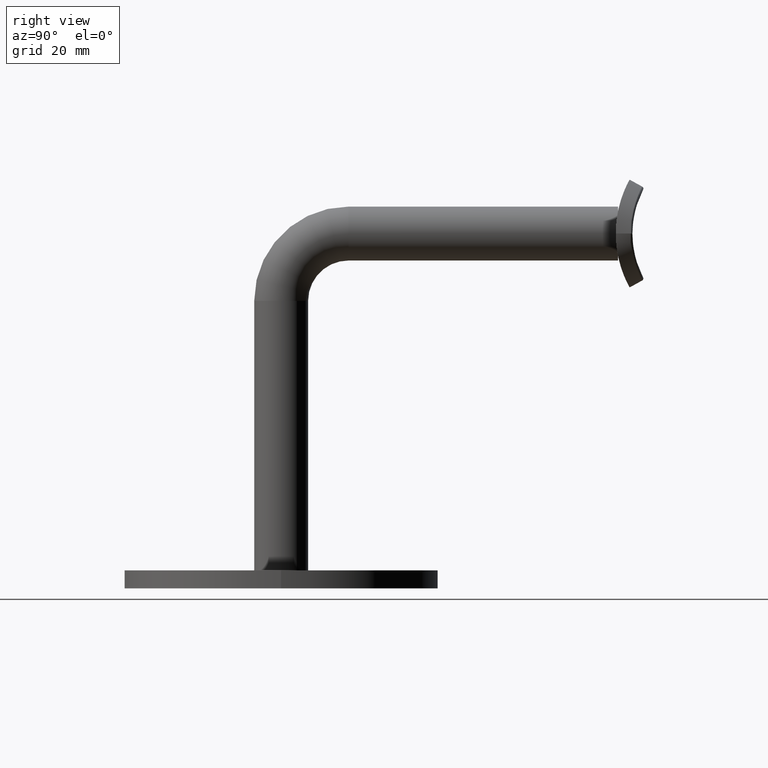
[diagram: clean part render]
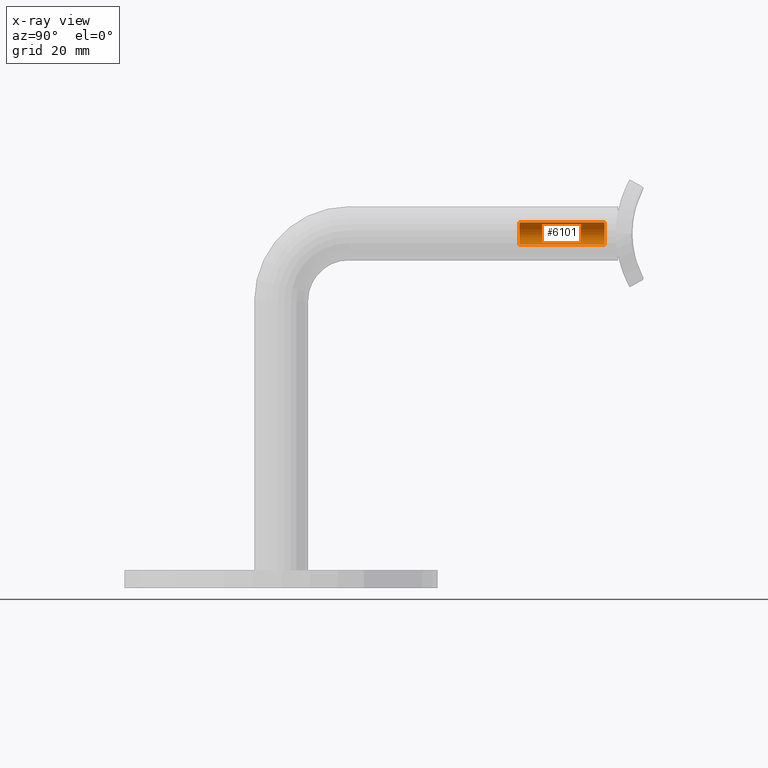
[diagram: x-ray — body ghosted, one internal face saturated and labeled with its STEP entity id]
A machine part, right view, then the same camera in x-ray: the body is ghosted and one INTERNAL B-rep face — a face not visible from any outside direction — is saturated and labeled: STEP entity #6101.
In plain terms, the highlighted cylindrical surface (edge-blend (fillet) strip) has radius 2.5 mm, axis along (0, 1, 0).
Its self-contained STEP definition (entity closure, byte-faithful):
#242 = CIRCLE ( 'NONE', #13540, 2.499999999999988454 ) ;
#303 = LINE ( 'NONE', #4439, #15909 ) ;
#750 = DIRECTION ( 'NONE',  ( 0.000000000000000000, 0.000000000000000000, 1.000000000000000000 ) ) ;
#1291 = AXIS2_PLACEMENT_3D ( 'NONE', #5112, #8012, #5050 ) ;
#1392 = CARTESIAN_POINT ( 'NONE',  ( 0.000000000000000000, 71.99999999999998579, 77.49999999999997158 ) ) ;
#1709 = DIRECTION ( 'NONE',  ( -0.000000000000000000, 1.000000000000000000, 6.123233995736766036E-17 ) ) ;
#2224 = ORIENTED_EDGE ( 'NONE', *, *, #17833, .F. ) ;
#4018 = VERTEX_POINT ( 'NONE', #14055 ) ;
#4326 = AXIS2_PLACEMENT_3D ( 'NONE', #6530, #1709, #12440 ) ;
#4439 = CARTESIAN_POINT ( 'NONE',  ( 3.061616997868373773E-16, 74.99999999999998579, 72.50000000000000000 ) ) ;
#4739 = CARTESIAN_POINT ( 'NONE',  ( 3.061616997868398918E-16, 52.99999999999998579, 72.50000000000000000 ) ) ;
#5050 = DIRECTION ( 'NONE',  ( 0.000000000000000000, 0.000000000000000000, 1.000000000000000000 ) ) ;
#5112 = CARTESIAN_POINT ( 'NONE',  ( 0.000000000000000000, 71.99999999999998579, 74.99999999999998579 ) ) ;
#6101 = ADVANCED_FACE ( 'NONE', ( #12777 ), #11814, .F. ) ;
#6530 = CARTESIAN_POINT ( 'NONE',  ( 0.000000000000000000, 74.99999999999998579, 74.99999999999998579 ) ) ;
#6895 = CARTESIAN_POINT ( 'NONE',  ( 0.000000000000000000, 52.99999999999998579, 74.99999999999998579 ) ) ;
#6981 = ORIENTED_EDGE ( 'NONE', *, *, #18858, .F. ) ;
#8012 = DIRECTION ( 'NONE',  ( 0.000000000000000000, -1.000000000000000000, -6.123233995736766036E-17 ) ) ;
#9312 = DIRECTION ( 'NONE',  ( -0.000000000000000000, 1.000000000000000000, 6.123233995736766036E-17 ) ) ;
#9435 = EDGE_LOOP ( 'NONE', ( #16541, #11126, #6981, #2224 ) ) ;
#10855 = VECTOR ( 'NONE', #9312, 1000.000000000000000 ) ;
#11126 = ORIENTED_EDGE ( 'NONE', *, *, #15548, .T. ) ;
#11802 = LINE ( 'NONE', #13717, #10855 ) ;
#11814 = CYLINDRICAL_SURFACE ( 'NONE', #4326, 2.499999999999988454 ) ;
#12375 = CIRCLE ( 'NONE', #1291, 2.499999999999988454 ) ;
#12440 = DIRECTION ( 'NONE',  ( 0.000000000000000000, 0.000000000000000000, 1.000000000000000000 ) ) ;
#12777 = FACE_OUTER_BOUND ( 'NONE', #9435, .T. ) ;
#12949 = DIRECTION ( 'NONE',  ( -0.000000000000000000, 1.000000000000000000, 6.123233995736766036E-17 ) ) ;
#13440 = VERTEX_POINT ( 'NONE', #17910 ) ;
#13540 = AXIS2_PLACEMENT_3D ( 'NONE', #6895, #12949, #750 ) ;
#13717 = CARTESIAN_POINT ( 'NONE',  ( 0.000000000000000000, 74.99999999999998579, 77.49999999999997158 ) ) ;
#14055 = CARTESIAN_POINT ( 'NONE',  ( 0.000000000000000000, 52.99999999999998579, 77.49999999999997158 ) ) ;
#14597 = VERTEX_POINT ( 'NONE', #4739 ) ;
#15548 = EDGE_CURVE ( 'NONE', #14597, #13440, #303, .T. ) ;
#15909 = VECTOR ( 'NONE', #16518, 1000.000000000000000 ) ;
#16518 = DIRECTION ( 'NONE',  ( -0.000000000000000000, 1.000000000000000000, 6.123233995736766036E-17 ) ) ;
#16541 = ORIENTED_EDGE ( 'NONE', *, *, #17580, .F. ) ;
#17580 = EDGE_CURVE ( 'NONE', #14597, #4018, #242, .T. ) ;
#17795 = VERTEX_POINT ( 'NONE', #1392 ) ;
#17833 = EDGE_CURVE ( 'NONE', #4018, #17795, #11802, .T. ) ;
#17910 = CARTESIAN_POINT ( 'NONE',  ( 4.898587196589444383E-16, 71.99999999999998579, 72.50000000000000000 ) ) ;
#18858 = EDGE_CURVE ( 'NONE', #17795, #13440, #12375, .T. ) ;